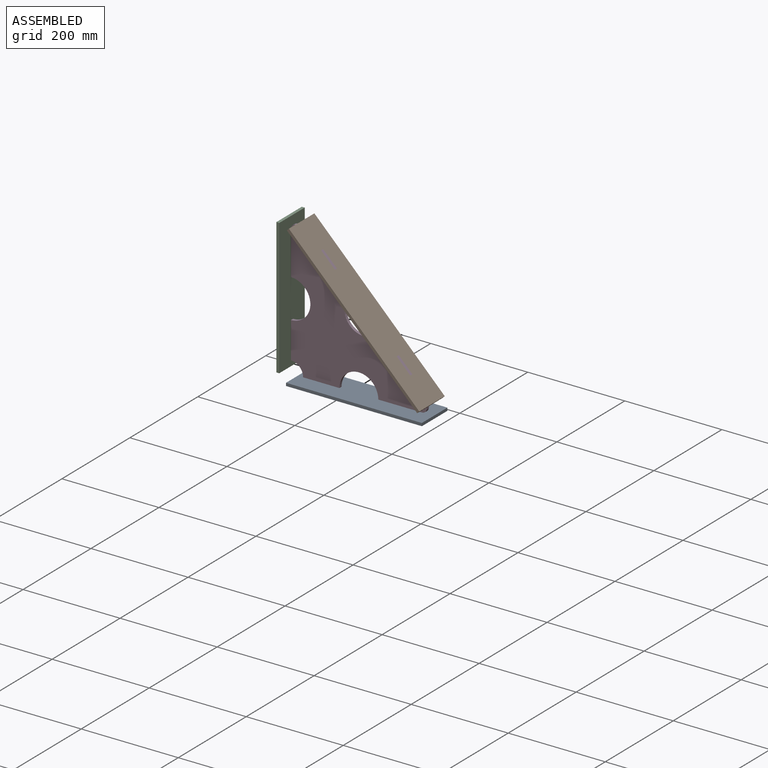
[diagram: assembled view]
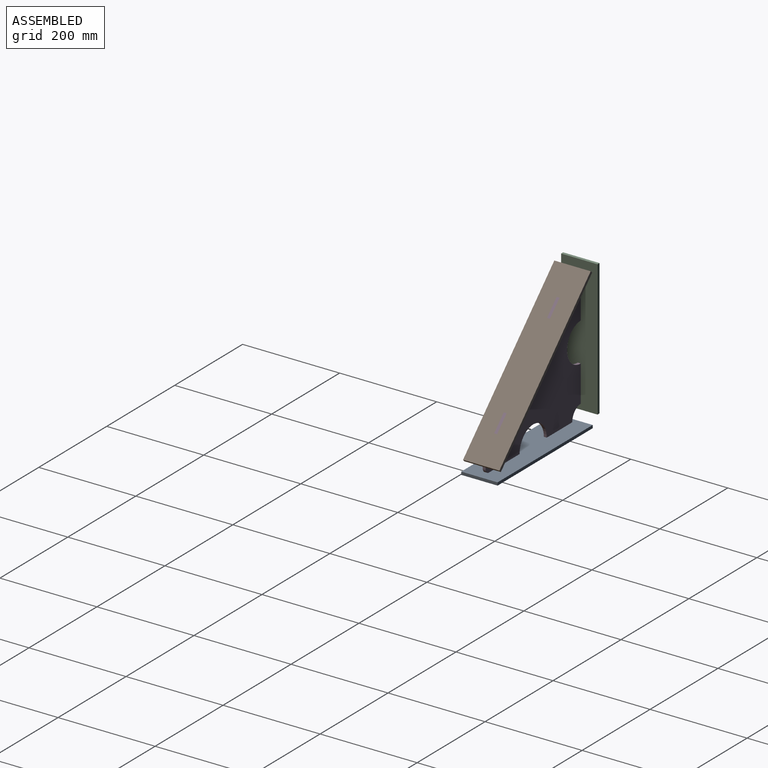
[diagram: assembled view, second angle]
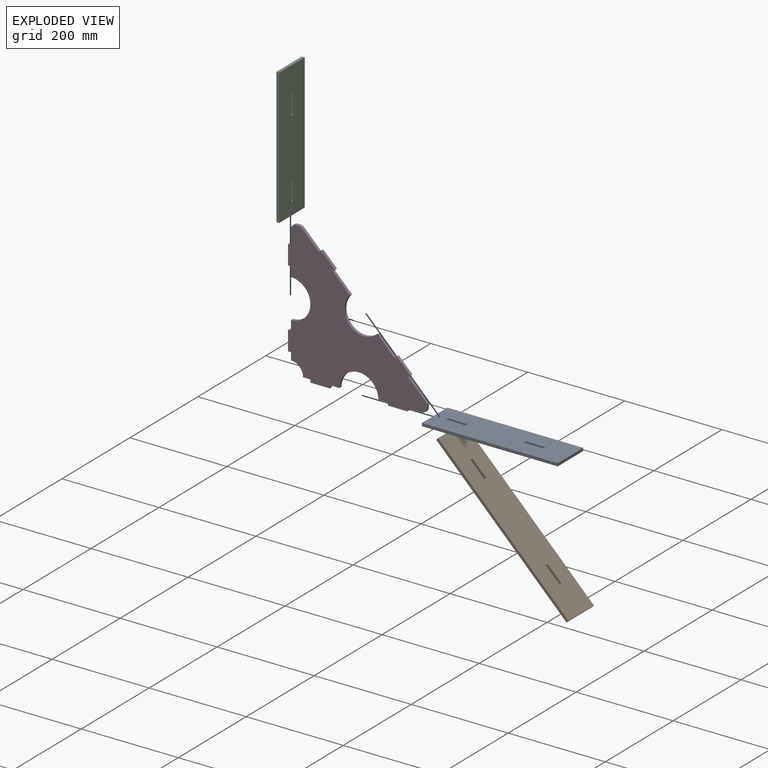
[diagram: exploded view]
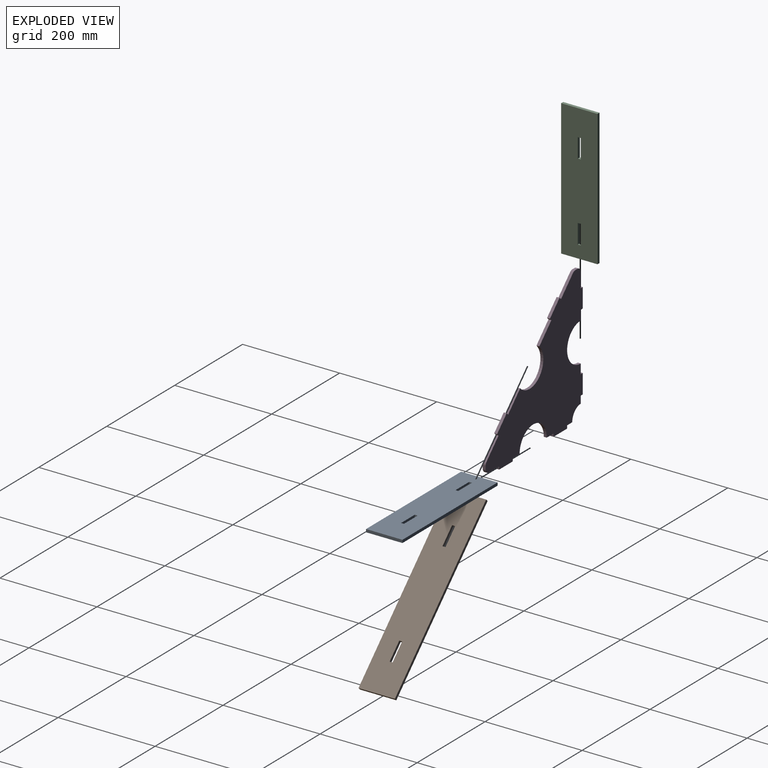
[diagram: exploded view, second angle]
ASSEMBLY  parts=4 mates=3
PART A: 14 faces, bbox 6x75x280 mm
  f0: plane 75x6mm, normal (0,0,1), area 450mm2, adj f1,f3,f4,f5
  f1: plane 280x6mm, normal (0,1,0), area 1680mm2, adj f0,f2,f4,f5
  f2: plane 75x6mm, normal (0,0,-1), area 450mm2, adj f1,f3,f4,f5
  f3: plane 280x6mm, normal (0,-1,0), area 1680mm2, adj f0,f2,f4,f5
  f4: plane 280x75mm, normal (-1,0,0), area 20520mm2, adj f0,f1,f2,f3,f6,f7,f8,f9
  f5: plane 280x75mm, normal (1,0,0), area 20520mm2, adj f0,f1,f2,f3,f6,f7,f8,f9
  f6: plane 40x6mm, normal (0,1,0), area 240mm2, adj f4,f5,f8,f9
  f7: plane 40x6mm, normal (0,-1,0), area 240mm2, adj f4,f5,f8,f9
  f8: plane 6x6mm, normal (0,0,1), area 36mm2, adj f4,f5,f6,f7
  f9: plane 6x6mm, normal (0,0,-1), area 36mm2, adj f4,f5,f6,f7
  f10: plane 40x6mm, normal (0,1,0), area 240mm2, adj f4,f5,f12,f13
  f11: plane 40x6mm, normal (0,-1,0), area 240mm2, adj f4,f5,f12,f13
  f12: plane 6x6mm, normal (0,0,-1), area 36mm2, adj f4,f5,f10,f11
  f13: plane 6x6mm, normal (0,0,1), area 36mm2, adj f4,f5,f10,f11
PART B: 14 faces, bbox 272.9x75x272.9 mm
  f0: plane 32.53x32.53mm, normal (0,1,0), area 240mm2, adj f1,f11,f12,f13
  f1: plane 6x4.24mm, normal (0.71,0,-0.71), area 36mm2, adj f0,f2,f12,f13
  f2: plane 32.53x32.53mm, normal (0,-1,0), area 240mm2, adj f1,f11,f12,f13
  f3: plane 32.53x32.53mm, normal (0,1,0), area 240mm2, adj f4,f9,f12,f13
  f4: plane 6x4.24mm, normal (0.71,0,-0.71), area 36mm2, adj f3,f5,f12,f13
  f5: plane 32.53x32.53mm, normal (0,-1,0), area 240mm2, adj f4,f9,f12,f13
  f6: plane 75x4.24mm, normal (-0.71,0,0.71), area 450mm2, adj f7,f10,f12,f13
  f7: plane 272.94x272.94mm, normal (0,-1,0), area 2280mm2, adj f6,f8,f12,f13
  f8: plane 75x4.24mm, normal (0.71,0,-0.71), area 450mm2, adj f7,f10,f12,f13
  f9: plane 6x4.24mm, normal (-0.71,0,0.71), area 36mm2, adj f3,f5,f12,f13
  f10: plane 272.94x272.94mm, normal (0,1,0), area 2280mm2, adj f6,f8,f12,f13
  f11: plane 6x4.24mm, normal (-0.71,0,0.71), area 36mm2, adj f0,f2,f12,f13
  f12: plane 268.7x268.7mm, normal (0.71,0,0.71), area 28020mm2, adj f0,f1,f2,f3,f4,f5,f6,f7
  f13: plane 268.7x268.7mm, normal (-0.71,0,-0.71), area 28020mm2, adj f0,f1,f2,f3,f4,f5,f6,f7
PART C: same geometry as A
PART D: 42 faces, bbox 286x6x286 mm
  f0: cylinder r=40mm len=80mm, axis (0,1,0), area 754mm2, adj f1,f39,f40,f41
  f1: plane 20x6mm, normal (-1,0,0), area 120mm2, adj f0,f2,f40,f41
  f2: plane 6x6mm, normal (0,0,1), area 36mm2, adj f1,f3,f40,f41
  f3: plane 40x6mm, normal (-1,0,0), area 240mm2, adj f2,f4,f40,f41
  f4: plane 6x6mm, normal (0,0,-1), area 36mm2, adj f3,f5,f40,f41
  f5: plane 15x6mm, normal (-1,0,0), area 90mm2, adj f4,f6,f40,f41
  f6: cylinder r=25mm len=25mm, axis (0,1,0), area 235.6mm2, adj f5,f7,f40,f41
  f7: plane 15x6mm, normal (0,0,-1), area 90mm2, adj f6,f8,f40,f41
  f8: plane 6x6mm, normal (-1,0,0), area 36mm2, adj f7,f9,f40,f41
  f9: plane 40x6mm, normal (0,0,-1), area 240mm2, adj f8,f10,f40,f41
  f10: plane 6x6mm, normal (1,0,0), area 36mm2, adj f9,f11,f40,f41
  f11: plane 20x6mm, normal (0,0,-1), area 120mm2, adj f10,f12,f40,f41
  f12: cylinder r=40mm len=80mm, axis (0,1,0), area 754mm2, adj f11,f13,f40,f41
  f13: plane 20x6mm, normal (0,0,-1), area 120mm2, adj f12,f14,f40,f41
  f14: plane 6x6mm, normal (-1,0,0), area 36mm2, adj f13,f15,f40,f41
  f15: plane 40x6mm, normal (0,0,-1), area 240mm2, adj f14,f16,f40,f41
  f16: plane 6x6mm, normal (1,0,0), area 36mm2, adj f15,f17,f40,f41
  f17: plane 30x6mm, normal (0,0,-1), area 180mm2, adj f16,f18,f40,f41
  f18: cylinder r=10mm len=10mm, axis (0,1,0), area 94.2mm2, adj f17,f19,f40,f41
  f19: plane 6x5.86mm, normal (1,0,0), area 35.1mm2, adj f18,f20,f40,f41
  f20: cylinder r=10mm len=7.07mm, axis (0,1,0), area 47.1mm2, adj f19,f21,f40,f41
  f21: plane 35.15x35.15mm, normal (0.71,0,0.71), area 298.2mm2, adj f20,f22,f40,f41
  f22: plane 6x4.24mm, normal (0.71,0,-0.71), area 36mm2, adj f21,f23,f40,f41
  f23: plane 28.28x28.28mm, normal (0.71,0,0.71), area 240mm2, adj f22,f24,f40,f41
  f24: plane 6x4.24mm, normal (-0.71,0,0.71), area 36mm2, adj f23,f25,f40,f41
  f25: plane 35.36x35.36mm, normal (0.71,0,0.71), area 300mm2, adj f24,f26,f40,f41
  f26: cylinder r=40mm len=68.28mm, axis (0,1,0), area 754mm2, adj f25,f27,f40,f41
  f27: plane 35.36x35.36mm, normal (0.71,0,0.71), area 300mm2, adj f26,f28,f40,f41
  f28: plane 6x4.24mm, normal (0.71,0,-0.71), area 36mm2, adj f27,f29,f40,f41
  f29: plane 28.28x28.28mm, normal (0.71,0,0.71), area 240mm2, adj f28,f30,f40,f41
  f30: plane 6x4.24mm, normal (-0.71,0,0.71), area 36mm2, adj f29,f31,f40,f41
  f31: plane 35.15x35.15mm, normal (0.71,0,0.71), area 298.2mm2, adj f30,f32,f40,f41
  f32: cylinder r=10mm len=7.07mm, axis (0,1,0), area 47.1mm2, adj f31,f33,f40,f41
  f33: plane 6x5.86mm, normal (0,0,1), area 35.1mm2, adj f32,f34,f40,f41
  f34: cylinder r=10mm len=10mm, axis (0,1,0), area 94.2mm2, adj f33,f35,f40,f41
  f35: plane 30x6mm, normal (-1,0,0), area 180mm2, adj f34,f36,f40,f41
  f36: plane 6x6mm, normal (0,0,1), area 36mm2, adj f35,f37,f40,f41
  f37: plane 40x6mm, normal (-1,0,0), area 240mm2, adj f36,f38,f40,f41
  f38: plane 6x6mm, normal (0,0,-1), area 36mm2, adj f37,f39,f40,f41
  f39: plane 20x6mm, normal (-1,0,0), area 120mm2, adj f0,f38,f40,f41
  f40: plane 286x286mm, normal (0,-1,0), area 37962.1mm2, adj f0,f1,f2,f3,f4,f5,f6,f7
  f41: plane 286x286mm, normal (0,1,0), area 37962.1mm2, adj f0,f1,f2,f3,f4,f5,f6,f7
PLACE A rot(axis=(0.71,0,0.71),180deg) t=(62.01,14.53,20.66)mm
PLACE B t=(45.26,202.92,37.41)mm
PLACE C t=(20.73,20.53,61.94)mm
PLACE D t=(20.73,20.53,61.94)mm
MATE fastened A.f13 <-> D.f8  axis (1,0,0) through (-97.99,17.53,-141.06)mm
MATE fastened D.f30 <-> B.f1  axis (-0.71,0,0.71) through (-77.79,17.53,105.99)mm
MATE fastened C.f13 <-> D.f4  axis (0,0,1) through (-140.99,17.53,-98.06)mm
